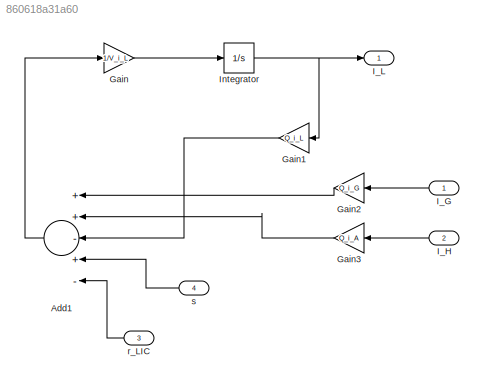
MODEL slx_860618a31a60
KIND model
CONFIG AbsTol = auto
CONFIG EnableMultiTasking = off
CONFIG FixedStep = auto
CONFIG MaxStep = auto
CONFIG MinStep = auto
CONFIG RelTol = 1e-3
CONFIG SampleTimeConstraint = Unconstrained
CONFIG Solver = VariableStepAuto
CONFIG SolverName = VariableStepAuto
CONFIG StartTime = 0.0
CONFIG StopTime = 10.0
BLOCK [Sum] Add1
  InputSameDT = off
  Inputs = ++-+-
  OutDataTypeStr = Inherit: Inherit via internal rule
  Ports = [5, 1]
  SaturateOnIntegerOverflow = off
BLOCK [Gain] Gain
  Gain = 1/V_i_L
  OutDataTypeStr = Inherit: Inherit via internal rule
  ParamDataTypeStr = Inherit: Inherit via internal rule
  SaturateOnIntegerOverflow = off
BLOCK [Gain] Gain1
  Gain = Q_i_L
  OutDataTypeStr = Inherit: Inherit via internal rule
  ParamDataTypeStr = Inherit: Inherit via internal rule
  SaturateOnIntegerOverflow = off
BLOCK [Gain] Gain2
  Gain = Q_i_G
  OutDataTypeStr = Inherit: Inherit via internal rule
  ParamDataTypeStr = Inherit: Inherit via internal rule
  SaturateOnIntegerOverflow = off
BLOCK [Gain] Gain3
  Gain = Q_i_A
  OutDataTypeStr = Inherit: Inherit via internal rule
  ParamDataTypeStr = Inherit: Inherit via internal rule
  SaturateOnIntegerOverflow = off
BLOCK [Inport] I_G 
  IconDisplay = Port number
BLOCK [Inport] I_H 
  IconDisplay = Port number
  Port = 2
BLOCK [Outport] I_L 
  IconDisplay = Port number
BLOCK [Integrator] Integrator
  InitialCondition = ILC_B
  LimitOutput = on
  LowerSaturationLimit = 0
  Ports = [1, 1]
BLOCK [Inport] r_LIC 
  IconDisplay = Port number
  Port = 3
BLOCK [Inport] s 
  IconDisplay = Port number
  Port = 4
LINE Add1:1 -> Gain:1
LINE Gain1:1 -> Add1:3
LINE Gain2:1 -> Add1:1
LINE Gain3:1 -> Add1:2
LINE Gain:1 -> Integrator:1
LINE I_G :1 -> Gain2:1
LINE I_H :1 -> Gain3:1
NET Integrator:1 -> Gain1:1, I_L :1
LINE r_LIC :1 -> Add1:5
LINE s :1 -> Add1:4
note: NET lines group one-source signal fan-out (src -> all destinations, sorted); 1:1 wires keep LINE
